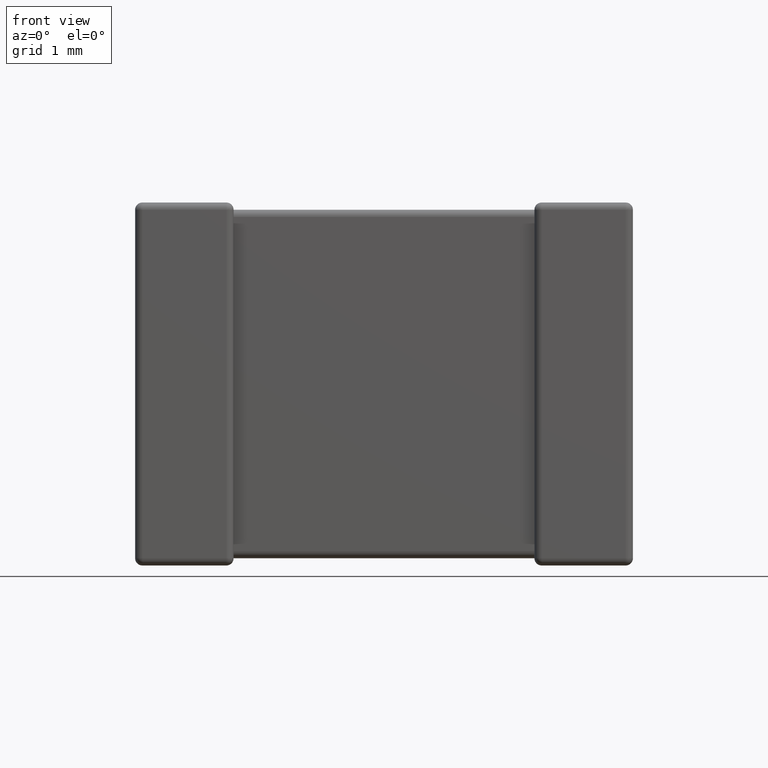
[diagram: clean part render]
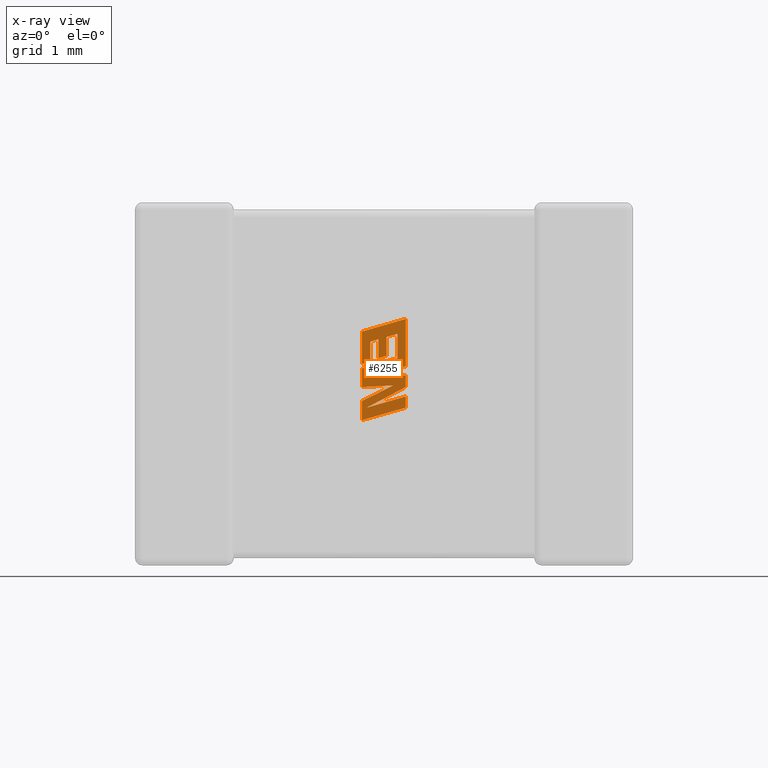
[diagram: x-ray — body ghosted, one internal face saturated and labeled with its STEP entity id]
A machine part, front view, then the same camera in x-ray: the body is ghosted and one INTERNAL B-rep face — a face not visible from any outside direction — is saturated and labeled: STEP entity #6255.
In plain terms, the highlighted planar face has unit normal (0, -1, 0).
Its self-contained STEP definition (entity closure, byte-faithful):
#13 = VERTEX_POINT ( 'NONE', #583 ) ;
#48 = EDGE_CURVE ( 'NONE', #2557, #1637, #368, .T. ) ;
#85 = LINE ( 'NONE', #1276, #3043 ) ;
#172 = DIRECTION ( 'NONE',  ( 0.000000000000000000, 0.000000000000000000, 1.000000000000000000 ) ) ;
#192 = LINE ( 'NONE', #4702, #2689 ) ;
#199 = CARTESIAN_POINT ( 'NONE',  ( 2.345986729845406238, 3.730000000000000870, -1.319474331684876267 ) ) ;
#259 = EDGE_CURVE ( 'NONE', #7262, #5931, #5832, .T. ) ;
#293 = DIRECTION ( 'NONE',  ( 0.000000000000000000, 0.000000000000000000, -1.000000000000000000 ) ) ;
#307 = VECTOR ( 'NONE', #3301, 1000.000000000000000 ) ;
#332 = VERTEX_POINT ( 'NONE', #5137 ) ;
#353 = DIRECTION ( 'NONE',  ( 0.9610853065513841331, 0.000000000000000000, 0.2762517575166390515 ) ) ;
#368 = LINE ( 'NONE', #2581, #7259 ) ;
#397 = DIRECTION ( 'NONE',  ( 0.9611542233438750138, 0.000000000000000000, 0.2760118818968347876 ) ) ;
#399 = ORIENTED_EDGE ( 'NONE', *, *, #4342, .F. ) ;
#457 = VERTEX_POINT ( 'NONE', #6447 ) ;
#488 = CARTESIAN_POINT ( 'NONE',  ( 2.489121993688410139, 3.730000000000000870, -1.764436364306863236 ) ) ;
#529 = LINE ( 'NONE', #488, #7059 ) ;
#583 = CARTESIAN_POINT ( 'NONE',  ( 2.186645483516002297, 3.730000000000000870, -1.914454814995855125 ) ) ;
#651 = VECTOR ( 'NONE', #397, 1000.000000000000227 ) ;
#655 = VECTOR ( 'NONE', #7051, 1000.000000000000114 ) ;
#669 = VERTEX_POINT ( 'NONE', #5722 ) ;
#724 = DIRECTION ( 'NONE',  ( -0.9615454294334510044, 0.000000000000000000, -0.2746459304916795685 ) ) ;
#727 = DIRECTION ( 'NONE',  ( 0.000000000000000000, 0.000000000000000000, -1.000000000000000000 ) ) ;
#775 = CARTESIAN_POINT ( 'NONE',  ( 2.610037239193115699, 3.730000000000000870, -1.504318313246481464 ) ) ;
#783 = DIRECTION ( 'NONE',  ( 0.000000000000000000, -0.000000000000000000, -1.000000000000000000 ) ) ;
#810 = LINE ( 'NONE', #775, #1829 ) ;
#872 = LINE ( 'NONE', #6996, #6504 ) ;
#893 = CARTESIAN_POINT ( 'NONE',  ( 2.233102687883919302, 3.730000000000000870, -1.687909687286877070 ) ) ;
#895 = VERTEX_POINT ( 'NONE', #2714 ) ;
#995 = VECTOR ( 'NONE', #3946, 1000.000000000000227 ) ;
#1062 = CARTESIAN_POINT ( 'NONE',  ( 2.345986729845406238, 3.730000000000000870, -1.501199023919118636 ) ) ;
#1118 = EDGE_CURVE ( 'NONE', #6186, #3597, #5190, .T. ) ;
#1182 = CARTESIAN_POINT ( 'NONE',  ( 2.610037239193115255, 3.730000000000000870, -1.870832917977188758 ) ) ;
#1187 = CARTESIAN_POINT ( 'NONE',  ( 2.610037239193115699, 3.730000000000000870, -1.123557707918843906 ) ) ;
#1247 = EDGE_CURVE ( 'NONE', #457, #6057, #192, .T. ) ;
#1276 = CARTESIAN_POINT ( 'NONE',  ( 2.610037239193115255, 3.730000000000000870, -1.978423307809901610 ) ) ;
#1298 = FACE_OUTER_BOUND ( 'NONE', #3079, .T. ) ;
#1299 = ORIENTED_EDGE ( 'NONE', *, *, #2167, .F. ) ;
#1319 = CARTESIAN_POINT ( 'NONE',  ( 2.529486700845182678, 3.730000000000000870, -1.501865879901004286 ) ) ;
#1331 = CARTESIAN_POINT ( 'NONE',  ( 0.000000000000000000, 3.730000000000000870, 0.000000000000000000 ) ) ;
#1362 = ORIENTED_EDGE ( 'NONE', *, *, #1118, .F. ) ;
#1474 = VECTOR ( 'NONE', #5700, 1000.000000000000114 ) ;
#1582 = LINE ( 'NONE', #1062, #307 ) ;
#1592 = ORIENTED_EDGE ( 'NONE', *, *, #3001, .F. ) ;
#1637 = VERTEX_POINT ( 'NONE', #4849 ) ;
#1647 = VERTEX_POINT ( 'NONE', #3281 ) ;
#1689 = CARTESIAN_POINT ( 'NONE',  ( 2.610037239193115255, 3.730000000000000870, -1.666781423975992604 ) ) ;
#1751 = EDGE_CURVE ( 'NONE', #2756, #6186, #810, .T. ) ;
#1780 = DIRECTION ( 'NONE',  ( 0.000000000000000000, 0.000000000000000000, 1.000000000000000000 ) ) ;
#1826 = LINE ( 'NONE', #2337, #995 ) ;
#1829 = VECTOR ( 'NONE', #2930, 1000.000000000000000 ) ;
#1934 = CARTESIAN_POINT ( 'NONE',  ( 2.529486700845182678, 3.730000000000000870, -1.501865879901004286 ) ) ;
#1989 = EDGE_CURVE ( 'NONE', #332, #669, #6871, .T. ) ;
#2167 = EDGE_CURVE ( 'NONE', #3753, #3580, #1582, .T. ) ;
#2272 = CARTESIAN_POINT ( 'NONE',  ( 2.345986729845406238, 3.730000000000000870, -1.501199023919118636 ) ) ;
#2330 = VERTEX_POINT ( 'NONE', #5858 ) ;
#2337 = CARTESIAN_POINT ( 'NONE',  ( 2.186645483516002297, 3.730000000000000870, -1.245392811321655691 ) ) ;
#2350 = EDGE_CURVE ( 'NONE', #3580, #457, #4670, .T. ) ;
#2351 = EDGE_CURVE ( 'NONE', #669, #3620, #872, .T. ) ;
#2389 = ORIENTED_EDGE ( 'NONE', *, *, #1989, .F. ) ;
#2557 = VERTEX_POINT ( 'NONE', #7035 ) ;
#2581 = CARTESIAN_POINT ( 'NONE',  ( 2.424257341655605913, 3.730000000000000870, -1.297143667817127977 ) ) ;
#2621 = LINE ( 'NONE', #6033, #4916 ) ;
#2689 = VECTOR ( 'NONE', #3617, 1000.000000000000000 ) ;
#2703 = EDGE_CURVE ( 'NONE', #1647, #13, #6103, .T. ) ;
#2714 = CARTESIAN_POINT ( 'NONE',  ( 2.231287500749252750, 3.730000000000000870, -1.979597386297506700 ) ) ;
#2722 = CARTESIAN_POINT ( 'NONE',  ( 2.186645483516002297, 3.730000000000000870, -1.558180451574426417 ) ) ;
#2745 = ORIENTED_EDGE ( 'NONE', *, *, #2350, .F. ) ;
#2756 = VERTEX_POINT ( 'NONE', #1187 ) ;
#2829 = ORIENTED_EDGE ( 'NONE', *, *, #4507, .F. ) ;
#2930 = DIRECTION ( 'NONE',  ( 0.000000000000000000, 0.000000000000000000, -1.000000000000000000 ) ) ;
#2965 = ORIENTED_EDGE ( 'NONE', *, *, #3927, .F. ) ;
#3001 = EDGE_CURVE ( 'NONE', #3620, #2330, #6273, .T. ) ;
#3043 = VECTOR ( 'NONE', #4074, 1000.000000000000114 ) ;
#3055 = CARTESIAN_POINT ( 'NONE',  ( 2.610037239193115699, 3.730000000000000870, -1.579680763539725419 ) ) ;
#3079 = EDGE_LOOP ( 'NONE', ( #6780, #3652, #3571, #4114, #5245, #399, #6126, #1362, #7220, #5934, #2965, #6668, #4682, #2745, #1299, #6675, #3711, #2829, #1592, #4042, #2389, #5711, #6740 ) ) ;
#3244 = CARTESIAN_POINT ( 'NONE',  ( 2.186645483516002297, 3.730000000000000870, -2.100151559431398862 ) ) ;
#3281 = CARTESIAN_POINT ( 'NONE',  ( 2.186645483516002297, 3.730000000000000870, -2.100151559431398862 ) ) ;
#3301 = DIRECTION ( 'NONE',  ( 0.000000000000000000, 0.000000000000000000, 1.000000000000000000 ) ) ;
#3302 = VECTOR ( 'NONE', #4109, 999.9999999999998863 ) ;
#3423 = DIRECTION ( 'NONE',  ( -0.9617234872620603614, 0.000000000000000000, -0.2740217765954043316 ) ) ;
#3465 = CARTESIAN_POINT ( 'NONE',  ( 2.233102687883919302, 3.730000000000000870, -1.687909687286877070 ) ) ;
#3485 = CARTESIAN_POINT ( 'NONE',  ( 2.186645483516002297, 3.730000000000000870, -1.914454814995855125 ) ) ;
#3535 = CARTESIAN_POINT ( 'NONE',  ( 2.610037239193115255, 3.730000000000000870, -1.870832917977188758 ) ) ;
#3557 = CARTESIAN_POINT ( 'NONE',  ( 2.267235930232777807, 3.730000000000000870, -1.535291070531620283 ) ) ;
#3565 = CARTESIAN_POINT ( 'NONE',  ( 2.424257341655605913, 3.730000000000000870, -1.478842612716133154 ) ) ;
#3571 = ORIENTED_EDGE ( 'NONE', *, *, #259, .F. ) ;
#3580 = VERTEX_POINT ( 'NONE', #4324 ) ;
#3597 = VERTEX_POINT ( 'NONE', #893 ) ;
#3617 = DIRECTION ( 'NONE',  ( 0.000000000000000000, 0.000000000000000000, -1.000000000000000000 ) ) ;
#3620 = VERTEX_POINT ( 'NONE', #1934 ) ;
#3652 = ORIENTED_EDGE ( 'NONE', *, *, #5202, .F. ) ;
#3707 = LINE ( 'NONE', #4430, #3967 ) ;
#3711 = ORIENTED_EDGE ( 'NONE', *, *, #48, .F. ) ;
#3737 = VERTEX_POINT ( 'NONE', #4706 ) ;
#3753 = VERTEX_POINT ( 'NONE', #2272 ) ;
#3927 = EDGE_CURVE ( 'NONE', #4521, #6072, #2621, .T. ) ;
#3946 = DIRECTION ( 'NONE',  ( 0.9610029908221286998, 0.000000000000000000, 0.2765379750249927771 ) ) ;
#3967 = VECTOR ( 'NONE', #4933, 1000.000000000000000 ) ;
#3970 = EDGE_CURVE ( 'NONE', #6072, #2756, #1826, .T. ) ;
#3992 = CARTESIAN_POINT ( 'NONE',  ( 2.610037239193115255, 3.730000000000000870, -1.779653879636415859 ) ) ;
#3997 = CARTESIAN_POINT ( 'NONE',  ( 2.610037239193115699, 3.730000000000000870, -1.579680763539725419 ) ) ;
#4042 = ORIENTED_EDGE ( 'NONE', *, *, #2351, .F. ) ;
#4074 = DIRECTION ( 'NONE',  ( -0.9610674221107080584, 0.000000000000000000, -0.2763139702539088582 ) ) ;
#4086 = EDGE_CURVE ( 'NONE', #6157, #895, #4245, .T. ) ;
#4109 = DIRECTION ( 'NONE',  ( -0.9611638845408990717, 0.000000000000000000, -0.2759782365590617292 ) ) ;
#4114 = ORIENTED_EDGE ( 'NONE', *, *, #6499, .F. ) ;
#4138 = VECTOR ( 'NONE', #5895, 1000.000000000000000 ) ;
#4144 = PLANE ( 'NONE',  #6697 ) ;
#4234 = VECTOR ( 'NONE', #5820, 1000.000000000000000 ) ;
#4245 = LINE ( 'NONE', #4799, #655 ) ;
#4324 = CARTESIAN_POINT ( 'NONE',  ( 2.345986729845406238, 3.730000000000000870, -1.319474331684876267 ) ) ;
#4342 = EDGE_CURVE ( 'NONE', #5187, #6157, #3707, .T. ) ;
#4430 = CARTESIAN_POINT ( 'NONE',  ( 2.610037239193115255, 3.730000000000000870, -1.666781423975992604 ) ) ;
#4507 = EDGE_CURVE ( 'NONE', #2330, #2557, #5576, .T. ) ;
#4521 = VERTEX_POINT ( 'NONE', #2722 ) ;
#4592 = VECTOR ( 'NONE', #3423, 1000.000000000000114 ) ;
#4643 = CARTESIAN_POINT ( 'NONE',  ( 2.186645483516002297, 3.730000000000000870, -1.780718800541098545 ) ) ;
#4653 = VECTOR ( 'NONE', #172, 1000.000000000000000 ) ;
#4670 = LINE ( 'NONE', #199, #4138 ) ;
#4682 = ORIENTED_EDGE ( 'NONE', *, *, #1247, .F. ) ;
#4702 = CARTESIAN_POINT ( 'NONE',  ( 2.267235930232777807, 3.730000000000000870, -1.342389460062902273 ) ) ;
#4703 = VECTOR ( 'NONE', #1780, 1000.000000000000000 ) ;
#4706 = CARTESIAN_POINT ( 'NONE',  ( 2.489121993688410139, 3.730000000000000870, -1.764436364306863236 ) ) ;
#4753 = LINE ( 'NONE', #3565, #7274 ) ;
#4781 = EDGE_CURVE ( 'NONE', #3737, #332, #529, .T. ) ;
#4799 = CARTESIAN_POINT ( 'NONE',  ( 2.610037239193115255, 3.730000000000000870, -1.779653879636415859 ) ) ;
#4849 = CARTESIAN_POINT ( 'NONE',  ( 2.424257341655605913, 3.730000000000000870, -1.478842612716133154 ) ) ;
#4916 = VECTOR ( 'NONE', #6588, 1000.000000000000000 ) ;
#4933 = DIRECTION ( 'NONE',  ( 0.000000000000000000, 0.000000000000000000, -1.000000000000000000 ) ) ;
#5137 = CARTESIAN_POINT ( 'NONE',  ( 2.186645483516002297, 3.730000000000000870, -1.780718800541098545 ) ) ;
#5158 = EDGE_CURVE ( 'NONE', #13, #3737, #5746, .T. ) ;
#5172 = LINE ( 'NONE', #3465, #1474 ) ;
#5186 = CARTESIAN_POINT ( 'NONE',  ( 2.186645483516002297, 3.730000000000000870, -1.245392811321655691 ) ) ;
#5187 = VERTEX_POINT ( 'NONE', #1689 ) ;
#5190 = LINE ( 'NONE', #3997, #3302 ) ;
#5202 = EDGE_CURVE ( 'NONE', #5931, #1647, #85, .T. ) ;
#5245 = ORIENTED_EDGE ( 'NONE', *, *, #4086, .F. ) ;
#5312 = EDGE_CURVE ( 'NONE', #6057, #4521, #6547, .T. ) ;
#5576 = LINE ( 'NONE', #6192, #4592 ) ;
#5579 = CARTESIAN_POINT ( 'NONE',  ( 2.231287500749252750, 3.730000000000000870, -1.979597386297506700 ) ) ;
#5700 = DIRECTION ( 'NONE',  ( 0.9984327301130258014, 0.000000000000000000, 0.05596501978066018013 ) ) ;
#5711 = ORIENTED_EDGE ( 'NONE', *, *, #4781, .F. ) ;
#5722 = CARTESIAN_POINT ( 'NONE',  ( 2.186645483516002297, 3.730000000000000870, -1.600411230860717904 ) ) ;
#5746 = LINE ( 'NONE', #3485, #7185 ) ;
#5820 = DIRECTION ( 'NONE',  ( -0.9619530280415491408, 0.000000000000000000, -0.2732148821746255840 ) ) ;
#5831 = VECTOR ( 'NONE', #727, 1000.000000000000000 ) ;
#5832 = LINE ( 'NONE', #3535, #5831 ) ;
#5858 = CARTESIAN_POINT ( 'NONE',  ( 2.529486700845182678, 3.730000000000000870, -1.267160895911229268 ) ) ;
#5895 = DIRECTION ( 'NONE',  ( -0.9601763114327632742, 0.000000000000000000, -0.2793947940878159786 ) ) ;
#5931 = VERTEX_POINT ( 'NONE', #6869 ) ;
#5934 = ORIENTED_EDGE ( 'NONE', *, *, #3970, .F. ) ;
#5965 = VECTOR ( 'NONE', #7246, 1000.000000000000000 ) ;
#6033 = CARTESIAN_POINT ( 'NONE',  ( 2.186645483516002297, 3.730000000000000870, -1.558180451574426417 ) ) ;
#6057 = VERTEX_POINT ( 'NONE', #6853 ) ;
#6072 = VERTEX_POINT ( 'NONE', #5186 ) ;
#6086 = LINE ( 'NONE', #5579, #651 ) ;
#6103 = LINE ( 'NONE', #3244, #5965 ) ;
#6126 = ORIENTED_EDGE ( 'NONE', *, *, #6354, .F. ) ;
#6157 = VERTEX_POINT ( 'NONE', #3992 ) ;
#6186 = VERTEX_POINT ( 'NONE', #3055 ) ;
#6192 = CARTESIAN_POINT ( 'NONE',  ( 2.529486700845182678, 3.730000000000000870, -1.267160895911229268 ) ) ;
#6255 = ADVANCED_FACE ( 'NONE', ( #1298 ), #4144, .T. ) ;
#6273 = LINE ( 'NONE', #1319, #4653 ) ;
#6354 = EDGE_CURVE ( 'NONE', #3597, #5187, #5172, .T. ) ;
#6397 = DIRECTION ( 'NONE',  ( 0.000000000000000000, -1.000000000000000000, 0.000000000000000000 ) ) ;
#6447 = CARTESIAN_POINT ( 'NONE',  ( 2.267235930232777807, 3.730000000000000870, -1.342389460062902273 ) ) ;
#6499 = EDGE_CURVE ( 'NONE', #895, #7262, #6086, .T. ) ;
#6504 = VECTOR ( 'NONE', #353, 1000.000000000000000 ) ;
#6547 = LINE ( 'NONE', #3557, #4234 ) ;
#6588 = DIRECTION ( 'NONE',  ( 0.000000000000000000, 0.000000000000000000, 1.000000000000000000 ) ) ;
#6668 = ORIENTED_EDGE ( 'NONE', *, *, #5312, .F. ) ;
#6675 = ORIENTED_EDGE ( 'NONE', *, *, #6678, .F. ) ;
#6678 = EDGE_CURVE ( 'NONE', #1637, #3753, #4753, .T. ) ;
#6697 = AXIS2_PLACEMENT_3D ( 'NONE', #1331, #6397, #783 ) ;
#6740 = ORIENTED_EDGE ( 'NONE', *, *, #5158, .F. ) ;
#6780 = ORIENTED_EDGE ( 'NONE', *, *, #2703, .F. ) ;
#6853 = CARTESIAN_POINT ( 'NONE',  ( 2.267235930232777807, 3.730000000000000870, -1.535291070531620283 ) ) ;
#6862 = DIRECTION ( 'NONE',  ( 0.8958676361827101475, 0.000000000000000000, 0.4443210308328914282 ) ) ;
#6869 = CARTESIAN_POINT ( 'NONE',  ( 2.610037239193115255, 3.730000000000000870, -1.978423307809901610 ) ) ;
#6871 = LINE ( 'NONE', #4643, #4703 ) ;
#6996 = CARTESIAN_POINT ( 'NONE',  ( 2.186645483516002297, 3.730000000000000870, -1.600411230860717904 ) ) ;
#7035 = CARTESIAN_POINT ( 'NONE',  ( 2.424257341655605913, 3.730000000000000870, -1.297143667817127977 ) ) ;
#7051 = DIRECTION ( 'NONE',  ( -0.8843386665637706923, 0.000000000000000000, -0.4668459304955029365 ) ) ;
#7059 = VECTOR ( 'NONE', #7211, 1000.000000000000227 ) ;
#7185 = VECTOR ( 'NONE', #6862, 1000.000000000000000 ) ;
#7211 = DIRECTION ( 'NONE',  ( -0.9985542843760948362, 0.000000000000000000, -0.05375259206907997966 ) ) ;
#7220 = ORIENTED_EDGE ( 'NONE', *, *, #1751, .F. ) ;
#7246 = DIRECTION ( 'NONE',  ( 0.000000000000000000, 0.000000000000000000, 1.000000000000000000 ) ) ;
#7259 = VECTOR ( 'NONE', #293, 1000.000000000000000 ) ;
#7262 = VERTEX_POINT ( 'NONE', #1182 ) ;
#7274 = VECTOR ( 'NONE', #724, 999.9999999999998863 ) ;